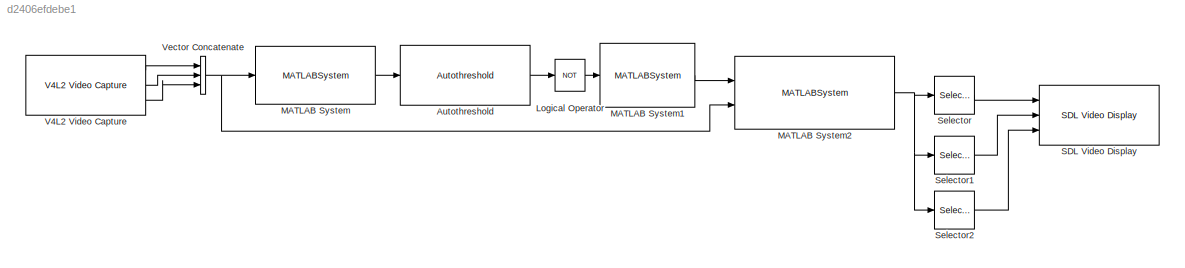
MODEL slx_d2406efdebe1
KIND model
CONFIG AbsTol = auto
CONFIG EnableMultiTasking = on
CONFIG FixedStep = auto
CONFIG MaxStep = auto
CONFIG MinStep = auto
CONFIG RelTol = 1e-3
CONFIG SampleTimeConstraint = Unconstrained
CONFIG SolverName = FixedStepAuto
CONFIG StartTime = 0.0
CONFIG StopTime = 100
BLOCK [Reference] Autothreshold  REF=visionconversions/Autothreshold
  Ports = [1, 1]
  SourceBlock = visionconversions/Autothreshold
  SourceProductBaseCode = VP
  SourceType = Autothreshold
BLOCK [Logic] Logical Operator
  AllPortsSameDT = off
  Operator = NOT
  OutDataTypeStr = boolean
  Ports = [1, 1]
BLOCK [MATLABSystem] MATLAB System
  MaskDisplay = disp('RGB to Gray');\nport_label('input',1,'RGB');\nport_label('output',1,'Gray');
  MaskType = Rgb2GraySystem
  Ports = [1, 1]
  SimulateUsing = Code generation
  System = Rgb2GraySystem
BLOCK [MATLABSystem] MATLAB System1
  Deg = 2
  MaskDisplay = disp('BW to P');\nport_label('input',1,'BW');\nport_label('output',1,'P');
  MaskType = PolyfitSystem
  Ports = [1, 1]
  SimulateUsing = Code generation
  System = PolyfitSystem
BLOCK [MATLABSystem] MATLAB System2
  MaskDisplay = disp('P to y');\nport_label('input',1,'P');\nport_label('input',2,'RGB');\nport_label('output',1,'output');
  MaskType = PolyvalColorSystem
  Ports = [2, 1]
  SimulateUsing = Code generation
  System = PolyvalColorSystem
BLOCK [Reference] SDL Video Display  REF=raspberrypiAVlib/SDL Video Display
  Ports = [3]
  SourceBlock = raspberrypiAVlib/SDL Video Display
  SourceProductBaseCode = SC_BEAGLEBONE_BLUE,EMBEDDEDLINUX,NVIDIA,RASPPIIO
  SourceType = SDL Video Display
BLOCK [Selector] Selector
  IndexOptions = Select all,Select all,Index vector (dialog)
  Indices = [1 3],1,1
  InputPortWidth = 3
  NumberOfDimensions = 3
  OutputSizes = 1,1,1
  Ports = [1, 1]
BLOCK [Selector] Selector1
  IndexOptions = Select all,Select all,Index vector (dialog)
  Indices = [1 3],1,2
  InputPortWidth = 3
  NumberOfDimensions = 3
  OutputSizes = 1,1,1
  Ports = [1, 1]
BLOCK [Selector] Selector2
  IndexOptions = Select all,Select all,Index vector (dialog)
  Indices = [1 3],1,3
  InputPortWidth = 3
  NumberOfDimensions = 3
  OutputSizes = 1,1,1
  Ports = [1, 1]
BLOCK [Reference] V4L2 Video Capture  REF=raspberrypiAVlib/V4L2 Video Capture
  Ports = [0, 3]
  SourceBlock = raspberrypiAVlib/V4L2 Video Capture
  SourceProductBaseCode = RASPPI
  SourceType = codertarget.raspi.internal.Raspiv4l2Capture
BLOCK [Concatenate] Vector Concatenate
  ConcatenateDimension = 3
  Mode = Multidimensional array
  NumInputs = 3
  Ports = [3, 1]
LINE Autothreshold:1 -> Logical Operator:1
LINE Logical Operator:1 -> MATLAB System1:1
LINE MATLAB System1:1 -> MATLAB System2:1
NET MATLAB System2:1 -> Selector1:1, Selector2:1, Selector:1
LINE MATLAB System:1 -> Autothreshold:1
LINE Selector1:1 -> SDL Video Display:2
LINE Selector2:1 -> SDL Video Display:3
LINE Selector:1 -> SDL Video Display:1
LINE V4L2 Video Capture:1 -> Vector Concatenate:1
LINE V4L2 Video Capture:2 -> Vector Concatenate:2
LINE V4L2 Video Capture:3 -> Vector Concatenate:3
NET Vector Concatenate:1 -> MATLAB System2:2, MATLAB System:1
note: NET lines group one-source signal fan-out (src -> all destinations, sorted); 1:1 wires keep LINE
